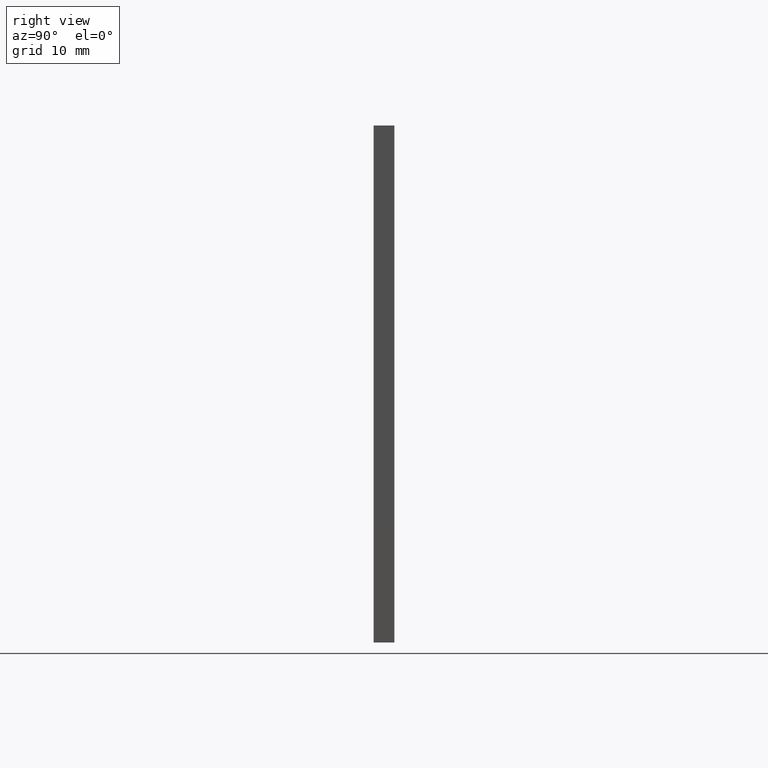
[diagram: clean part render]
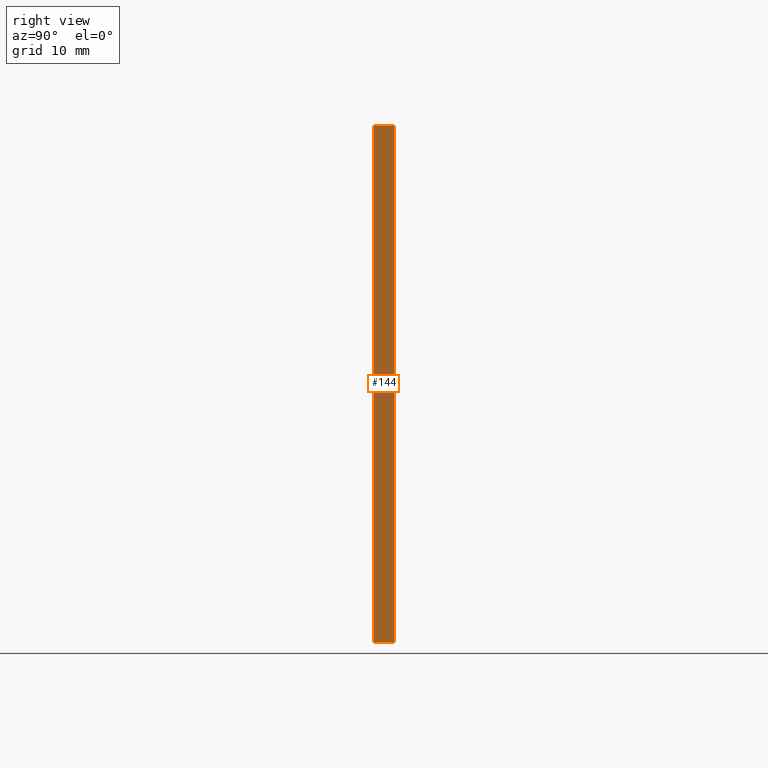
[diagram: same view with one face highlighted and labeled with its STEP entity id]
A machine part, right view. The second image highlights one B-rep face of the part: STEP entity #144.
In plain terms, the highlighted planar face has unit normal (-1, 0, 0).
Its self-contained STEP definition (entity closure, byte-faithful):
#2 = EDGE_CURVE ( 'NONE', #154, #149, #189, .T. ) ;
#3 = EDGE_LOOP ( 'NONE', ( #168, #125, #113, #83 ) ) ;
#12 = DIRECTION ( 'NONE',  ( -1.000000000000000000, 0.0000000000000000000, 0.0000000000000000000 ) ) ;
#21 = VECTOR ( 'NONE', #34, 1000.000000000000000 ) ;
#26 = DIRECTION ( 'NONE',  ( 0.0000000000000000000, 0.0000000000000000000, -1.000000000000000000 ) ) ;
#29 = CARTESIAN_POINT ( 'NONE',  ( 25.00000000000000000, 0.0000000000000000000, -25.00000000000000000 ) ) ;
#34 = DIRECTION ( 'NONE',  ( 0.0000000000000000000, 0.0000000000000000000, -1.000000000000000000 ) ) ;
#36 = LINE ( 'NONE', #102, #111 ) ;
#42 = CARTESIAN_POINT ( 'NONE',  ( 25.00000000000000000, 2.000000000000000000, 25.00000000000000000 ) ) ;
#45 = CARTESIAN_POINT ( 'NONE',  ( 25.00000000000000000, 2.000000000000000000, -25.00000000000000000 ) ) ;
#50 = CARTESIAN_POINT ( 'NONE',  ( 25.00000000000000000, 2.000000000000000000, 25.00000000000000000 ) ) ;
#56 = VERTEX_POINT ( 'NONE', #176 ) ;
#68 = LINE ( 'NONE', #165, #21 ) ;
#71 = CARTESIAN_POINT ( 'NONE',  ( 25.00000000000000000, 2.000000000000000000, -25.00000000000000000 ) ) ;
#72 = EDGE_CURVE ( 'NONE', #56, #149, #36, .T. ) ;
#74 = VERTEX_POINT ( 'NONE', #42 ) ;
#78 = PLANE ( 'NONE',  #172 ) ;
#83 = ORIENTED_EDGE ( 'NONE', *, *, #159, .T. ) ;
#102 = CARTESIAN_POINT ( 'NONE',  ( 25.00000000000000000, 0.0000000000000000000, 25.00000000000000000 ) ) ;
#111 = VECTOR ( 'NONE', #26, 1000.000000000000000 ) ;
#113 = ORIENTED_EDGE ( 'NONE', *, *, #155, .F. ) ;
#120 = DIRECTION ( 'NONE',  ( -0.0000000000000000000, -1.000000000000000000, -0.0000000000000000000 ) ) ;
#125 = ORIENTED_EDGE ( 'NONE', *, *, #2, .F. ) ;
#129 = DIRECTION ( 'NONE',  ( -0.0000000000000000000, -1.000000000000000000, -0.0000000000000000000 ) ) ;
#140 = VECTOR ( 'NONE', #120, 1000.000000000000000 ) ;
#141 = CARTESIAN_POINT ( 'NONE',  ( 25.00000000000000000, 2.000000000000000000, 25.00000000000000000 ) ) ;
#142 = VECTOR ( 'NONE', #129, 1000.000000000000000 ) ;
#144 = ADVANCED_FACE ( 'NONE', ( #171 ), #78, .F. ) ;
#149 = VERTEX_POINT ( 'NONE', #29 ) ;
#154 = VERTEX_POINT ( 'NONE', #45 ) ;
#155 = EDGE_CURVE ( 'NONE', #74, #154, #68, .T. ) ;
#159 = EDGE_CURVE ( 'NONE', #74, #56, #187, .T. ) ;
#165 = CARTESIAN_POINT ( 'NONE',  ( 25.00000000000000000, 2.000000000000000000, 25.00000000000000000 ) ) ;
#168 = ORIENTED_EDGE ( 'NONE', *, *, #72, .T. ) ;
#171 = FACE_OUTER_BOUND ( 'NONE', #3, .T. ) ;
#172 = AXIS2_PLACEMENT_3D ( 'NONE', #141, #12, #179 ) ;
#176 = CARTESIAN_POINT ( 'NONE',  ( 25.00000000000000000, 0.0000000000000000000, 25.00000000000000000 ) ) ;
#179 = DIRECTION ( 'NONE',  ( 0.0000000000000000000, 0.0000000000000000000, 1.000000000000000000 ) ) ;
#187 = LINE ( 'NONE', #50, #140 ) ;
#189 = LINE ( 'NONE', #71, #142 ) ;